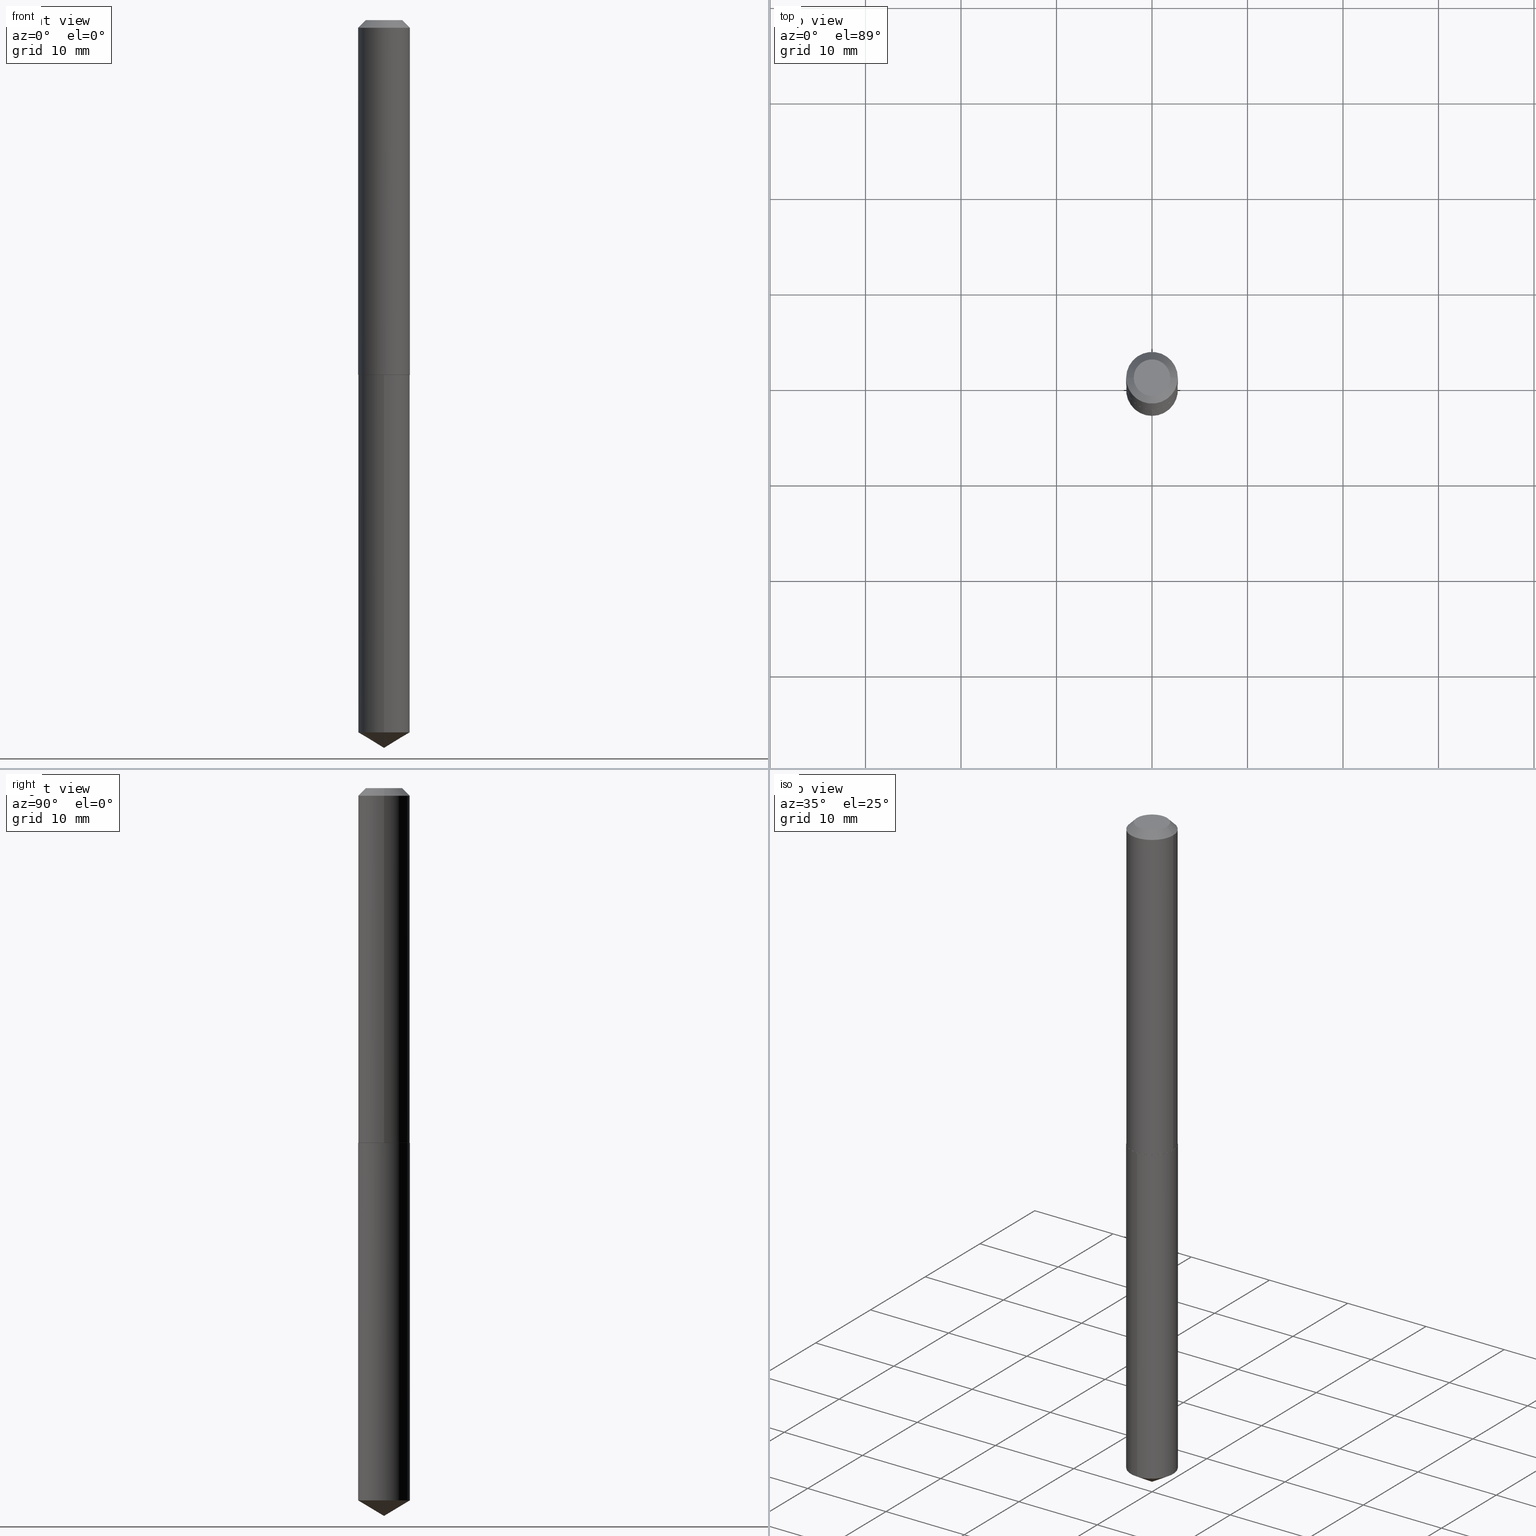
[diagram: canonical four-view strip — front | top / right | iso, engineering-drawing reading convention]
A machine part, canonical four-view strip (front | top / right | iso — engineering-drawing reading convention). The complete STEP part file that produces these views, byte-faithful:
ISO-10303-21;
HEADER;
FILE_DESCRIPTION (( 'STEP AP203' ),
    '1' );
FILE_NAME ('51003.STEP',
    '2024-04-22T18:11:49',
    ( '' ),
    ( '' ),
    'SwSTEP 2.0',
    'SolidWorks 2023',
    '' );
FILE_SCHEMA (( 'CONFIG_CONTROL_DESIGN' ));
ENDSEC;

DATA;
#1 = CIRCLE ( 'NONE', #269, 0.1065000000000001779 ) ;
#2 = DIRECTION ( 'NONE',  ( -2.441767001978232702E-29, 3.496782533161042889E-15, 1.000000000000000000 ) ) ;
#3 = VECTOR ( 'NONE', #383, 39.37007874015748143 ) ;
#4 = DIRECTION ( 'NONE',  ( -1.000000000000000000, 6.982962677686267499E-15, 0.000000000000000000 ) ) ;
#5 = DIRECTION ( 'NONE',  ( -2.445468806185136877E-29, 3.491481338843145188E-15, 1.000000000000000000 ) ) ;
#6 = ADVANCED_FACE ( 'NONE', ( #360 ), #79, .T. ) ;
#7 = CONICAL_SURFACE ( 'NONE', #226, 65.52281426576870160, 1.029744258676656310 ) ;
#8 = COORDINATED_UNIVERSAL_TIME_OFFSET ( 5, 0, .BEHIND. ) ;
#9 = ADVANCED_FACE ( 'NONE', ( #110 ), #361, .T. ) ;
#10 = PERSON_AND_ORGANIZATION_ROLE ( 'classification_officer' ) ;
#11 = APPROVAL_PERSON_ORGANIZATION ( #35, #353, #130 ) ;
#12 = DATE_AND_TIME ( #71, #62 ) ;
#13 = AXIS2_PLACEMENT_3D ( 'NONE', #278, #285, #47 ) ;
#14 = CARTESIAN_POINT ( 'NONE',  ( -7.436855251735515470E-16, -0.1065000000000051045, -1.462999999999999856 ) ) ;
#15 = VERTEX_POINT ( 'NONE', #176 ) ;
#16 = EDGE_CURVE ( 'NONE', #204, #22, #23, .T. ) ;
#17 = DIRECTION ( 'NONE',  ( -5.985567269335949957E-15, -0.8571673007021114454, 0.5150380749100555988 ) ) ;
#18 = FACE_OUTER_BOUND ( 'NONE', #306, .T. ) ;
#19 = EDGE_CURVE ( 'NONE', #15, #179, #357, .T. ) ;
#20 = EDGE_LOOP ( 'NONE', ( #73, #192 ) ) ;
#21 = EDGE_CURVE ( 'NONE', #22, #44, #49, .T. ) ;
#22 = VERTEX_POINT ( 'NONE', #386 ) ;
#23 = LINE ( 'NONE', #148, #217 ) ;
#24 = PRODUCT ( '51003', '51003', '', ( #316 ) ) ;
#25 =( NAMED_UNIT ( * ) SI_UNIT ( $, .STERADIAN. ) SOLID_ANGLE_UNIT ( ) );
#26 = APPROVAL_PERSON_ORGANIZATION ( #302, #337, #153 ) ;
#27 = ORIENTED_EDGE ( 'NONE', *, *, #253, .T. ) ;
#28 = AXIS2_PLACEMENT_3D ( 'NONE', #90, #116, #149 ) ;
#29 = DIRECTION ( 'NONE',  ( 1.000000000000000000, -6.982962677686261977E-15, 0.000000000000000000 ) ) ;
#30 = CONICAL_SURFACE ( 'NONE', #245, 0.1065000000000001779, 0.7853981633974141952 ) ;
#31 = EDGE_LOOP ( 'NONE', ( #257, #326, #259, #214 ) ) ;
#32 = CARTESIAN_POINT ( 'NONE',  ( -0.1065000000000001779, -4.349563444473592911E-15, -1.462500000000000355 ) ) ;
#33 = PERSON_AND_ORGANIZATION_ROLE ( 'design_supplier' ) ;
#34 = CC_DESIGN_DATE_AND_TIME_ASSIGNMENT ( #368, #272, ( #181 ) ) ;
#35 = PERSON_AND_ORGANIZATION ( #324, #376 ) ;
#36 = CARTESIAN_POINT ( 'NONE',  ( 7.567280135845785648E-16, 0.1064999999999948904, -1.463000000000000522 ) ) ;
#37 = ADVANCED_FACE ( 'NONE', ( #202 ), #185, .T. ) ;
#38 = AXIS2_PLACEMENT_3D ( 'NONE', #170, #256, #235 ) ;
#39 = CIRCLE ( 'NONE', #81, 0.1064999999999999974 ) ;
#40 = COORDINATED_UNIVERSAL_TIME_OFFSET ( 5, 0, .BEHIND. ) ;
#41 = DIRECTION ( 'NONE',  ( -6.982962677686265133E-15, -1.000000000000000000, 2.565115487008698002E-15 ) ) ;
#42 = APPROVAL_STATUS ( 'not_yet_approved' ) ;
#43 = CLOSED_SHELL ( 'NONE', ( #37, #280, #6, #172, #318, #9, #267, #241 ) ) ;
#44 = VERTEX_POINT ( 'NONE', #225 ) ;
#45 = CARTESIAN_POINT ( 'NONE',  ( 7.325301005934698666E-29, -1.049034759948312748E-14, -3.000000000000000444 ) ) ;
#46 = ORIENTED_EDGE ( 'NONE', *, *, #56, .T. ) ;
#47 = DIRECTION ( 'NONE',  ( 1.000000000000000000, -6.982962677686265922E-15, 4.876211453340348118E-29 ) ) ;
#48 = VECTOR ( 'NONE', #140, 39.37007874015748143 ) ;
#49 = CIRCLE ( 'NONE', #38, 0.1064999999999999974 ) ;
#50 = LINE ( 'NONE', #251, #385 ) ;
#51 = DIRECTION ( 'NONE',  ( 0.000000000000000000, 0.000000000000000000, 1.000000000000000000 ) ) ;
#52 = DIRECTION ( 'NONE',  ( 2.445468806185136597E-29, -3.491481338843145583E-15, -1.000000000000000000 ) ) ;
#53 = DIRECTION ( 'NONE',  ( 1.000000000000000000, -6.982962677686261977E-15, 0.000000000000000000 ) ) ;
#54 = DIRECTION ( 'NONE',  ( -0.7071067811865453523, 2.468850131082234184E-15, -0.7071067811865496822 ) ) ;
#55 =( LENGTH_UNIT ( ) NAMED_UNIT ( * ) SI_UNIT ( $, .METRE. ) );
#56 = EDGE_CURVE ( 'NONE', #15, #84, #314, .T. ) ;
#57 = AXIS2_PLACEMENT_3D ( 'NONE', #373, #369, #41 ) ;
#58 = CARTESIAN_POINT ( 'NONE',  ( 7.642090019328599159E-31, -1.091087918388489774E-16, -0.03125000000000019429 ) ) ;
#59 = CARTESIAN_POINT ( 'NONE',  ( 7.642090019328599159E-31, -1.091087918388489774E-16, -0.03125000000000019429 ) ) ;
#60 = ORIENTED_EDGE ( 'NONE', *, *, #273, .F. ) ;
#61 = CARTESIAN_POINT ( 'NONE',  ( 3.577720863448855523E-29, -5.108037198727522968E-15, -1.463000000000000300 ) ) ;
#62 = LOCAL_TIME ( 14, 11, 49.00000000000000000, #300 ) ;
#63 = ORIENTED_EDGE ( 'NONE', *, *, #168, .T. ) ;
#64 = CARTESIAN_POINT ( 'NONE',  ( 7.174464031646285139E-29, -1.025882704748443620E-14, -2.936008344073565368 ) ) ;
#65 = PERSON_AND_ORGANIZATION ( #324, #376 ) ;
#66 = AXIS2_PLACEMENT_3D ( 'NONE', #128, #244, #99 ) ;
#67 = ADVANCED_FACE ( 'NONE', ( #113 ), #205, .T. ) ;
#68 = PERSON_AND_ORGANIZATION ( #324, #376 ) ;
#69 = APPROVAL_DATE_TIME ( #156, #224 ) ;
#70 =( GEOMETRIC_REPRESENTATION_CONTEXT ( 3 ) GLOBAL_UNCERTAINTY_ASSIGNED_CONTEXT ( ( #304 ) ) GLOBAL_UNIT_ASSIGNED_CONTEXT ( ( #174, #355, #25 ) ) REPRESENTATION_CONTEXT ( 'NONE', 'WORKASPACE' ) );
#71 = CALENDAR_DATE ( 2024, 22, 4 ) ;
#72 = ADVANCED_FACE ( 'NONE', ( #83 ), #7, .T. ) ;
#73 = ORIENTED_EDGE ( 'NONE', *, *, #293, .T. ) ;
#74 = DIRECTION ( 'NONE',  ( 1.000000000000000000, -6.982962677686261977E-15, 0.000000000000000000 ) ) ;
#75 = EDGE_CURVE ( 'NONE', #345, #22, #320, .T. ) ;
#76 = ORIENTED_EDGE ( 'NONE', *, *, #155, .F. ) ;
#77 = LOCAL_TIME ( 14, 11, 49.00000000000000000, #96 ) ;
#78 = DIRECTION ( 'NONE',  ( 1.000000000000000000, -6.982962677686266711E-15, 0.000000000000000000 ) ) ;
#79 = CONICAL_SURFACE ( 'NONE', #28, 0.1065000000000001779, 0.7853981633974141952 ) ;
#80 = ORIENTED_EDGE ( 'NONE', *, *, #75, .T. ) ;
#81 = AXIS2_PLACEMENT_3D ( 'NONE', #191, #162, #137 ) ;
#82 = DIRECTION ( 'NONE',  ( 1.000000000000000000, 0.000000000000000000, 0.000000000000000000 ) ) ;
#83 = FACE_OUTER_BOUND ( 'NONE', #313, .T. ) ;
#84 = VERTEX_POINT ( 'NONE', #242 ) ;
#85 = DIRECTION ( 'NONE',  ( -2.441767001978232421E-29, 3.496782533161042889E-15, 1.000000000000000000 ) ) ;
#86 = VERTEX_POINT ( 'NONE', #339 ) ;
#87 = CARTESIAN_POINT ( 'NONE',  ( 3.577720863448855523E-29, -5.108037198727522968E-15, -1.463000000000000300 ) ) ;
#88 = AXIS2_PLACEMENT_3D ( 'NONE', #182, #173, #297 ) ;
#89 = CONICAL_SURFACE ( 'NONE', #186, 65.52281426576870160, 1.029744258676656310 ) ;
#90 = CARTESIAN_POINT ( 'NONE',  ( 3.576498129045762721E-29, -5.106291458058101465E-15, -1.462500000000000355 ) ) ;
#91 = FACE_OUTER_BOUND ( 'NONE', #343, .T. ) ;
#92 = CARTESIAN_POINT ( 'NONE',  ( 7.174464031646285139E-29, -1.025882704748443620E-14, -2.936008344073565368 ) ) ;
#93 = DIRECTION ( 'NONE',  ( -2.445468806185136597E-29, 3.491481338843145583E-15, 1.000000000000000000 ) ) ;
#94 = SECURITY_CLASSIFICATION_LEVEL ( 'unclassified' ) ;
#95 = APPROVAL_DATE_TIME ( #270, #337 ) ;
#96 = COORDINATED_UNIVERSAL_TIME_OFFSET ( 5, 0, .BEHIND. ) ;
#97 = PERSON_AND_ORGANIZATION ( #324, #376 ) ;
#98 = CIRCLE ( 'NONE', #284, 0.1064999999999999974 ) ;
#99 = DIRECTION ( 'NONE',  ( 1.000000000000000000, -6.982962677686266711E-15, 0.000000000000000000 ) ) ;
#100 = PERSON_AND_ORGANIZATION_ROLE ( 'creator' ) ;
#101 = LOCAL_TIME ( 14, 11, 49.00000000000000000, #8 ) ;
#102 = VERTEX_POINT ( 'NONE', #239 ) ;
#103 = CARTESIAN_POINT ( 'NONE',  ( 0.1060000000000000386, -5.848231242562268092E-15, -1.463000000000000522 ) ) ;
#104 = ORIENTED_EDGE ( 'NONE', *, *, #155, .T. ) ;
#105 = ADVANCED_FACE ( 'NONE', ( #335 ), #303, .T. ) ;
#106 = LINE ( 'NONE', #311, #372 ) ;
#107 = VERTEX_POINT ( 'NONE', #36 ) ;
#108 = CARTESIAN_POINT ( 'NONE',  ( 5.989671091818683705E-48, -8.551662891793989687E-34, -2.449293598294718806E-19 ) ) ;
#109 = DIRECTION ( 'NONE',  ( -6.982962677686265922E-15, -1.000000000000000000, 3.468864327941580015E-15 ) ) ;
#110 = FACE_OUTER_BOUND ( 'NONE', #231, .T. ) ;
#111 = CARTESIAN_POINT ( 'NONE',  ( 0.1064999999999999974, -8.397518286015170054E-16, -0.03125000000000019429 ) ) ;
#112 = AXIS2_PLACEMENT_3D ( 'NONE', #59, #296, #4 ) ;
#113 = FACE_OUTER_BOUND ( 'NONE', #327, .T. ) ;
#114 = FACE_OUTER_BOUND ( 'NONE', #292, .T. ) ;
#115 = CC_DESIGN_DATE_AND_TIME_ASSIGNMENT ( #126, #240, ( #145 ) ) ;
#116 = DIRECTION ( 'NONE',  ( -2.445468806185136597E-29, 3.491481338843145583E-15, 1.000000000000000000 ) ) ;
#117 = DIRECTION ( 'NONE',  ( -6.982962677686265133E-15, -1.000000000000000000, 2.565115487008698002E-15 ) ) ;
#118 = ORIENTED_EDGE ( 'NONE', *, *, #19, .F. ) ;
#119 = AXIS2_PLACEMENT_3D ( 'NONE', #213, #377, #78 ) ;
#120 = DIRECTION ( 'NONE',  ( -6.982962677686265133E-15, -1.000000000000000000, 5.130230974017396004E-15 ) ) ;
#121 = CARTESIAN_POINT ( 'NONE',  ( 0.000000000000000000, 0.000000000000000000, 0.000000000000000000 ) ) ;
#122 = EDGE_CURVE ( 'NONE', #102, #218, #216, .T. ) ;
#123 = PLANE ( 'NONE',  #248 ) ;
#124 = DIRECTION ( 'NONE',  ( -2.445468806185136877E-29, 3.491481338843145188E-15, 1.000000000000000000 ) ) ;
#125 = VECTOR ( 'NONE', #201, 39.37007874015748854 ) ;
#126 = DATE_AND_TIME ( #305, #288 ) ;
#127 = EDGE_CURVE ( 'NONE', #218, #102, #154, .T. ) ;
#128 = CARTESIAN_POINT ( 'NONE',  ( 3.577720863448856083E-29, -5.108037198727523757E-15, -1.463000000000000522 ) ) ;
#129 = APPLICATION_CONTEXT ( 'configuration controlled 3d designs of mechanical parts and assemblies' ) ;
#130 = APPROVAL_ROLE ( '' ) ;
#131 = APPROVAL_DATE_TIME ( #12, #353 ) ;
#132 = CIRCLE ( 'NONE', #351, 0.1064999999999999974 ) ;
#133 = CC_DESIGN_PERSON_AND_ORGANIZATION_ASSIGNMENT ( #266, #10, ( #181 ) ) ;
#134 = FACE_OUTER_BOUND ( 'NONE', #252, .T. ) ;
#135 = ADVANCED_FACE ( 'NONE', ( #341 ), #89, .T. ) ;
#136 = ORIENTED_EDGE ( 'NONE', *, *, #16, .T. ) ;
#137 = DIRECTION ( 'NONE',  ( -6.982962677686265133E-15, -1.000000000000000000, 2.565115487008698002E-15 ) ) ;
#138 = VERTEX_POINT ( 'NONE', #307 ) ;
#139 = CIRCLE ( 'NONE', #13, 0.07524999999999999745 ) ;
#140 = DIRECTION ( 'NONE',  ( 0.7071067811865453523, -7.319954787623248157E-15, -0.7071067811865496822 ) ) ;
#141 = ORIENTED_EDGE ( 'NONE', *, *, #390, .T. ) ;
#142 = CARTESIAN_POINT ( 'NONE',  ( 9.448187553533588505E-30, -8.878502873001873389E-15, -1.463000000000000300 ) ) ;
#143 = CARTESIAN_POINT ( 'NONE',  ( 0.000000000000000000, 0.000000000000000000, 0.000000000000000000 ) ) ;
#144 = DIRECTION ( 'NONE',  ( -2.445468806185136597E-29, 3.491481338843145583E-15, 1.000000000000000000 ) ) ;
#145 = PRODUCT_DEFINITION ( 'UNKNOWN', '', #243, #370 ) ;
#146 = ORIENTED_EDGE ( 'NONE', *, *, #19, .T. ) ;
#147 = CARTESIAN_POINT ( 'NONE',  ( 7.567280135845422772E-16, 0.1064999999999948904, -1.463000000000000522 ) ) ;
#148 = CARTESIAN_POINT ( 'NONE',  ( -0.1064999999999999974, 6.345767333347384381E-16, -0.03125000000000019429 ) ) ;
#149 = DIRECTION ( 'NONE',  ( 1.000000000000000000, -6.982962677686261977E-15, 0.000000000000000000 ) ) ;
#150 = DIRECTION ( 'NONE',  ( 2.441767001978232421E-29, -3.496782533161042889E-15, -1.000000000000000000 ) ) ;
#151 = CIRCLE ( 'NONE', #301, 0.1064999999999999974 ) ;
#152 = CARTESIAN_POINT ( 'NONE',  ( 3.576498129045762721E-29, -5.106291458058101465E-15, -1.462500000000000355 ) ) ;
#153 = APPROVAL_ROLE ( '' ) ;
#154 = CIRCLE ( 'NONE', #119, 0.1060000000000000386 ) ;
#155 = EDGE_CURVE ( 'NONE', #138, #345, #1, .T. ) ;
#156 = DATE_AND_TIME ( #331, #101 ) ;
#157 = PERSON_AND_ORGANIZATION_ROLE ( 'creator' ) ;
#158 = CIRCLE ( 'NONE', #342, 0.07524999999999999745 ) ;
#159 = ORIENTED_EDGE ( 'NONE', *, *, #390, .F. ) ;
#160 = DIRECTION ( 'NONE',  ( -2.441767001978232702E-29, 3.496782533161042889E-15, 1.000000000000000000 ) ) ;
#161 = ORIENTED_EDGE ( 'NONE', *, *, #21, .T. ) ;
#162 = DIRECTION ( 'NONE',  ( -2.441767001978232702E-29, 3.496782533161042889E-15, 1.000000000000000000 ) ) ;
#163 = ORIENTED_EDGE ( 'NONE', *, *, #308, .F. ) ;
#164 = DIRECTION ( 'NONE',  ( -2.445468806185136597E-29, 3.491481338843145583E-15, 1.000000000000000000 ) ) ;
#165 = ORIENTED_EDGE ( 'NONE', *, *, #237, .T. ) ;
#166 = AXIS2_PLACEMENT_3D ( 'NONE', #121, #183, #358 ) ;
#167 = ORIENTED_EDGE ( 'NONE', *, *, #384, .F. ) ;
#168 = EDGE_CURVE ( 'NONE', #86, #84, #106, .T. ) ;
#169 = CARTESIAN_POINT ( 'NONE',  ( -8.880184238751188333E-28, 1.271860117155615693E-13, 36.37007874015748143 ) ) ;
#170 = CARTESIAN_POINT ( 'NONE',  ( 7.642090019328599159E-31, -1.091087918388489774E-16, -0.03125000000000019429 ) ) ;
#171 = DIRECTION ( 'NONE',  ( -2.441767001978232702E-29, 3.496782533161042889E-15, 1.000000000000000000 ) ) ;
#172 = ADVANCED_FACE ( 'NONE', ( #134 ), #315, .F. ) ;
#173 = DIRECTION ( 'NONE',  ( -2.441767001978232702E-29, 3.496782533161042889E-15, 1.000000000000000000 ) ) ;
#174 =( CONVERSION_BASED_UNIT ( 'INCH', #364 ) LENGTH_UNIT ( ) NAMED_UNIT ( #356 ) );
#175 = EDGE_CURVE ( 'NONE', #86, #15, #219, .T. ) ;
#176 = CARTESIAN_POINT ( 'NONE',  ( -7.436855251735155552E-16, -0.1065000000000102531, -2.936008344073564924 ) ) ;
#177 = DIRECTION ( 'NONE',  ( -2.441767001978232702E-29, 3.496782533161042889E-15, 1.000000000000000000 ) ) ;
#178 = CC_DESIGN_PERSON_AND_ORGANIZATION_ASSIGNMENT ( #65, #157, ( #243 ) ) ;
#179 = VERTEX_POINT ( 'NONE', #14 ) ;
#180 = CYLINDRICAL_SURFACE ( 'NONE', #166, 0.1065000000000000807 ) ;
#181 = SECURITY_CLASSIFICATION ( '', '', #94 ) ;
#182 = CARTESIAN_POINT ( 'NONE',  ( 3.577720863448855523E-29, -5.108037198727522968E-15, -1.463000000000000300 ) ) ;
#183 = DIRECTION ( 'NONE',  ( -2.445468806185136597E-29, 3.491481338843145583E-15, 1.000000000000000000 ) ) ;
#184 = APPROVAL_STATUS ( 'not_yet_approved' ) ;
#185 = CONICAL_SURFACE ( 'NONE', #264, 0.1064999999999999974, 0.7853981633974452814 ) ;
#186 = AXIS2_PLACEMENT_3D ( 'NONE', #169, #160, #109 ) ;
#187 = SHAPE_DEFINITION_REPRESENTATION ( #363, #210 ) ;
#188 = EDGE_CURVE ( 'NONE', #222, #44, #348, .T. ) ;
#189 = ORIENTED_EDGE ( 'NONE', *, *, #366, .F. ) ;
#190 = ORIENTED_EDGE ( 'NONE', *, *, #325, .T. ) ;
#191 = CARTESIAN_POINT ( 'NONE',  ( 3.577720863448855523E-29, -5.108037198727522968E-15, -1.463000000000000300 ) ) ;
#192 = ORIENTED_EDGE ( 'NONE', *, *, #209, .T. ) ;
#193 = CC_DESIGN_APPROVAL ( #224, ( #145 ) ) ;
#194 = ORIENTED_EDGE ( 'NONE', *, *, #366, .T. ) ;
#195 = DIRECTION ( 'NONE',  ( -1.000000000000000000, 6.982962677686265922E-15, -4.876176775795935793E-29 ) ) ;
#196 = EDGE_CURVE ( 'NONE', #218, #138, #50, .T. ) ;
#197 = ORIENTED_EDGE ( 'NONE', *, *, #253, .F. ) ;
#198 = DIRECTION ( 'NONE',  ( -2.441767001978232702E-29, 3.496782533161042889E-15, 1.000000000000000000 ) ) ;
#199 = CARTESIAN_POINT ( 'NONE',  ( -0.1065000000000001779, -4.349563444473592911E-15, -1.462500000000000355 ) ) ;
#200 = ORIENTED_EDGE ( 'NONE', *, *, #273, .T. ) ;
#201 = DIRECTION ( 'NONE',  ( -0.7071067811865232589, 7.493145998870265808E-15, 0.7071067811865715536 ) ) ;
#202 = FACE_OUTER_BOUND ( 'NONE', #31, .T. ) ;
#203 = VECTOR ( 'NONE', #17, 39.37007874015748143 ) ;
#204 = VERTEX_POINT ( 'NONE', #227 ) ;
#205 = CYLINDRICAL_SURFACE ( 'NONE', #88, 0.1064999999999999974 ) ;
#206 = DIRECTION ( 'NONE',  ( 1.000000000000000000, -6.982962677686267499E-15, 0.000000000000000000 ) ) ;
#207 = PRODUCT_RELATED_PRODUCT_CATEGORY ( 'detail', '', ( #24 ) ) ;
#208 = APPROVAL_STATUS ( 'not_yet_approved' ) ;
#209 = EDGE_CURVE ( 'NONE', #222, #204, #139, .T. ) ;
#210 = ADVANCED_BREP_SHAPE_REPRESENTATION ( '51003', ( #228, #367, #346 ), #70 ) ;
#211 = AXIS2_PLACEMENT_3D ( 'NONE', #108, #221, #195 ) ;
#212 = AXIS2_PLACEMENT_3D ( 'NONE', #143, #323, #261 ) ;
#213 = CARTESIAN_POINT ( 'NONE',  ( 3.577720863448856083E-29, -5.108037198727523757E-15, -1.463000000000000522 ) ) ;
#214 = ORIENTED_EDGE ( 'NONE', *, *, #16, .F. ) ;
#215 = ORIENTED_EDGE ( 'NONE', *, *, #196, .T. ) ;
#216 = CIRCLE ( 'NONE', #66, 0.1060000000000000386 ) ;
#217 = VECTOR ( 'NONE', #54, 39.37007874015748143 ) ;
#218 = VERTEX_POINT ( 'NONE', #103 ) ;
#219 = LINE ( 'NONE', #45, #203 ) ;
#220 = EDGE_LOOP ( 'NONE', ( #233, #63, #277 ) ) ;
#221 = DIRECTION ( 'NONE',  ( 2.438088387897960049E-29, -3.491481338843145188E-15, -1.000000000000000000 ) ) ;
#222 = VERTEX_POINT ( 'NONE', #310 ) ;
#223 = CARTESIAN_POINT ( 'NONE',  ( 3.576498129045762721E-29, -5.106291458058101465E-15, -1.462500000000000355 ) ) ;
#224 = APPROVAL ( #208, 'UNSPECIFIED' ) ;
#225 = CARTESIAN_POINT ( 'NONE',  ( 0.1064999999999999974, -8.527943170124363436E-16, -0.03125000000000019429 ) ) ;
#226 = AXIS2_PLACEMENT_3D ( 'NONE', #229, #198, #317 ) ;
#227 = CARTESIAN_POINT ( 'NONE',  ( -0.07524999999999999745, 5.800223374153149725E-16, -4.898587196628091026E-19 ) ) ;
#228 = MANIFOLD_SOLID_BREP ( 'Body-Move/Copy2[1]', #260 ) ;
#229 = CARTESIAN_POINT ( 'NONE',  ( -8.880184238751188333E-28, 1.271860117155615693E-13, 36.37007874015748143 ) ) ;
#230 = LINE ( 'NONE', #199, #125 ) ;
#231 = EDGE_LOOP ( 'NONE', ( #381, #200, #340, #352 ) ) ;
#232 = CC_DESIGN_PERSON_AND_ORGANIZATION_ASSIGNMENT ( #97, #100, ( #145 ) ) ;
#233 = ORIENTED_EDGE ( 'NONE', *, *, #175, .F. ) ;
#234 = LINE ( 'NONE', #147, #359 ) ;
#235 = DIRECTION ( 'NONE',  ( 1.000000000000000000, -6.982962677686267499E-15, 0.000000000000000000 ) ) ;
#236 = DIRECTION ( 'NONE',  ( 1.000000000000000000, -6.982962677686265922E-15, 4.876211453340348118E-29 ) ) ;
#237 = EDGE_CURVE ( 'NONE', #107, #179, #39, .T. ) ;
#238 = CARTESIAN_POINT ( 'NONE',  ( 7.642090019328599159E-31, -1.091087918388489774E-16, -0.03125000000000019429 ) ) ;
#239 = CARTESIAN_POINT ( 'NONE',  ( -0.1060000000000000386, -4.352212671647704901E-15, -1.463000000000000522 ) ) ;
#240 = DATE_TIME_ROLE ( 'creation_date' ) ;
#241 = ADVANCED_FACE ( 'NONE', ( #379 ), #380, .F. ) ;
#242 = CARTESIAN_POINT ( 'NONE',  ( 7.567280135845780717E-16, 0.1064999999999897140, -2.936008344073565812 ) ) ;
#243 = PRODUCT_DEFINITION_FORMATION_WITH_SPECIFIED_SOURCE ( 'ANY', '', #24, .NOT_KNOWN. ) ;
#244 = DIRECTION ( 'NONE',  ( -2.445468806185136597E-29, 3.491481338843145583E-15, 1.000000000000000000 ) ) ;
#245 = AXIS2_PLACEMENT_3D ( 'NONE', #328, #144, #53 ) ;
#246 = DIRECTION ( 'NONE',  ( 0.7071067811865232589, -2.468850131082003836E-15, 0.7071067811865715536 ) ) ;
#247 = EDGE_LOOP ( 'NONE', ( #104, #80, #163, #167 ) ) ;
#248 = AXIS2_PLACEMENT_3D ( 'NONE', #61, #150, #262 ) ;
#249 = ORIENTED_EDGE ( 'NONE', *, *, #122, .F. ) ;
#250 = ADVANCED_FACE ( 'NONE', ( #18 ), #123, .F. ) ;
#251 = CARTESIAN_POINT ( 'NONE',  ( 0.1065000000000001779, -5.849976983231689595E-15, -1.462500000000000355 ) ) ;
#252 = EDGE_LOOP ( 'NONE', ( #347, #249 ) ) ;
#253 = EDGE_CURVE ( 'NONE', #102, #345, #230, .T. ) ;
#254 = ORIENTED_EDGE ( 'NONE', *, *, #293, .F. ) ;
#255 = PERSON_AND_ORGANIZATION ( #324, #376 ) ;
#256 = DIRECTION ( 'NONE',  ( -2.445468806185136597E-29, 3.491481338843145583E-15, 1.000000000000000000 ) ) ;
#257 = ORIENTED_EDGE ( 'NONE', *, *, #209, .F. ) ;
#258 = APPROVAL_PERSON_ORGANIZATION ( #334, #224, #371 ) ;
#259 = ORIENTED_EDGE ( 'NONE', *, *, #308, .T. ) ;
#260 = CLOSED_SHELL ( 'NONE', ( #105, #135, #72, #67, #250 ) ) ;
#261 = DIRECTION ( 'NONE',  ( 1.000000000000000000, -6.982962677686267499E-15, 4.876176775795935232E-29 ) ) ;
#262 = DIRECTION ( 'NONE',  ( 6.982962677686265922E-15, 1.000000000000000000, -3.496782533161042889E-15 ) ) ;
#263 = CONICAL_SURFACE ( 'NONE', #112, 0.1064999999999999974, 0.7853981633974452814 ) ;
#264 = AXIS2_PLACEMENT_3D ( 'NONE', #58, #52, #389 ) ;
#265 = LINE ( 'NONE', #319, #299 ) ;
#266 = PERSON_AND_ORGANIZATION ( #324, #376 ) ;
#267 = ADVANCED_FACE ( 'NONE', ( #114 ), #263, .T. ) ;
#268 = COORDINATED_UNIVERSAL_TIME_OFFSET ( 5, 0, .BEHIND. ) ;
#269 = AXIS2_PLACEMENT_3D ( 'NONE', #223, #164, #74 ) ;
#270 = DATE_AND_TIME ( #365, #77 ) ;
#271 = PERSON_AND_ORGANIZATION_ROLE ( 'design_owner' ) ;
#272 = DATE_TIME_ROLE ( 'classification_date' ) ;
#273 = EDGE_CURVE ( 'NONE', #345, #138, #312, .T. ) ;
#274 = AXIS2_PLACEMENT_3D ( 'NONE', #142, #276, #344 ) ;
#275 = ORIENTED_EDGE ( 'NONE', *, *, #196, .F. ) ;
#276 = DIRECTION ( 'NONE',  ( -2.438088387897960049E-29, 3.491481338843145188E-15, 1.000000000000000000 ) ) ;
#277 = ORIENTED_EDGE ( 'NONE', *, *, #56, .F. ) ;
#278 = CARTESIAN_POINT ( 'NONE',  ( 1.197934218363736741E-47, -1.710332578358797937E-33, -4.898587196589437612E-19 ) ) ;
#279 = CC_DESIGN_SECURITY_CLASSIFICATION ( #181, ( #243 ) ) ;
#280 = ADVANCED_FACE ( 'NONE', ( #388 ), #180, .T. ) ;
#281 = EDGE_LOOP ( 'NONE', ( #387, #27, #76, #275 ) ) ;
#282 = DIRECTION ( 'NONE',  ( 6.090539988449787113E-15, 0.8571673007021151092, 0.5150380749100497146 ) ) ;
#283 = APPLICATION_CONTEXT ( 'configuration controlled 3d designs of mechanical parts and assemblies' ) ;
#284 = AXIS2_PLACEMENT_3D ( 'NONE', #238, #362, #206 ) ;
#285 = DIRECTION ( 'NONE',  ( -2.445468806185136597E-29, 3.491481338843145583E-15, 1.000000000000000000 ) ) ;
#286 = ORIENTED_EDGE ( 'NONE', *, *, #122, .T. ) ;
#287 = APPLICATION_PROTOCOL_DEFINITION ( 'international standard', 'config_control_design', 1994, #129 ) ;
#288 = LOCAL_TIME ( 14, 11, 49.00000000000000000, #40 ) ;
#289 = CARTESIAN_POINT ( 'NONE',  ( -7.436855251735515470E-16, -0.1065000000000051045, -1.462999999999999856 ) ) ;
#290 = DIRECTION ( 'NONE',  ( -2.445468806185136597E-29, 3.491481338843145583E-15, 1.000000000000000000 ) ) ;
#291 = CARTESIAN_POINT ( 'NONE',  ( -0.1065000000000000807, 7.567280135845072715E-16, -5.238665871121478096E-30 ) ) ;
#292 = EDGE_LOOP ( 'NONE', ( #338, #254, #136, #161 ) ) ;
#293 = EDGE_CURVE ( 'NONE', #204, #222, #158, .T. ) ;
#294 = CC_DESIGN_APPROVAL ( #337, ( #243 ) ) ;
#295 = ORIENTED_EDGE ( 'NONE', *, *, #325, .F. ) ;
#296 = DIRECTION ( 'NONE',  ( 2.445468806185136597E-29, -3.491481338843145583E-15, -1.000000000000000000 ) ) ;
#297 = DIRECTION ( 'NONE',  ( -6.982962677686265133E-15, -1.000000000000000000, 2.565115487008698002E-15 ) ) ;
#298 = DIRECTION ( 'NONE',  ( -6.982962677686265133E-15, -1.000000000000000000, 5.130230974017396004E-15 ) ) ;
#299 = VECTOR ( 'NONE', #5, 39.37007874015748143 ) ;
#300 = COORDINATED_UNIVERSAL_TIME_OFFSET ( 5, 0, .BEHIND. ) ;
#301 = AXIS2_PLACEMENT_3D ( 'NONE', #64, #177, #298 ) ;
#302 = PERSON_AND_ORGANIZATION ( #324, #376 ) ;
#303 = CYLINDRICAL_SURFACE ( 'NONE', #57, 0.1064999999999999974 ) ;
#304 = UNCERTAINTY_MEASURE_WITH_UNIT (LENGTH_MEASURE( 1.000000000000000082E-05 ), #174, 'distance_accuracy_value', 'NONE');
#305 = CALENDAR_DATE ( 2024, 22, 4 ) ;
#306 = EDGE_LOOP ( 'NONE', ( #141, #165 ) ) ;
#307 = CARTESIAN_POINT ( 'NONE',  ( 0.1065000000000001779, -5.849976983231689595E-15, -1.462500000000000355 ) ) ;
#308 = EDGE_CURVE ( 'NONE', #44, #22, #98, .T. ) ;
#309 = ORIENTED_EDGE ( 'NONE', *, *, #175, .T. ) ;
#310 = CARTESIAN_POINT ( 'NONE',  ( 0.07524999999999999745, -6.780021514669123730E-16, -4.898587196547362783E-19 ) ) ;
#311 = CARTESIAN_POINT ( 'NONE',  ( 7.336227464330352641E-29, -1.047483630490896181E-14, -3.000000000000000444 ) ) ;
#312 = CIRCLE ( 'NONE', #330, 0.1065000000000001779 ) ;
#313 = EDGE_LOOP ( 'NONE', ( #375, #309, #295 ) ) ;
#314 = CIRCLE ( 'NONE', #350, 0.1064999999999999974 ) ;
#315 = PLANE ( 'NONE',  #274 ) ;
#316 = MECHANICAL_CONTEXT ( 'NONE', #129, 'mechanical' ) ;
#317 = DIRECTION ( 'NONE',  ( -6.982962677686265922E-15, -1.000000000000000000, 3.468864327941580015E-15 ) ) ;
#318 = ADVANCED_FACE ( 'NONE', ( #91 ), #30, .T. ) ;
#319 = CARTESIAN_POINT ( 'NONE',  ( 0.1065000000000000807, -7.436855251735880318E-16, 5.193128266222675235E-30 ) ) ;
#320 = LINE ( 'NONE', #291, #322 ) ;
#321 = CARTESIAN_POINT ( 'NONE',  ( 1.197934218363736741E-47, -1.710332578358797937E-33, -4.898587196589437612E-19 ) ) ;
#322 = VECTOR ( 'NONE', #124, 39.37007874015748143 ) ;
#323 = DIRECTION ( 'NONE',  ( -2.445468806185136597E-29, 3.491481338843145583E-15, 1.000000000000000000 ) ) ;
#324 = PERSON ( 'UNSPECIFIED', 'UNSPECIFIED', 'UNSPECIFIED', ('UNSPECIFIED'), ('UNSPECIFIED'), ('UNSPECIFIED') ) ;
#325 = EDGE_CURVE ( 'NONE', #84, #15, #151, .T. ) ;
#326 = ORIENTED_EDGE ( 'NONE', *, *, #188, .T. ) ;
#327 = EDGE_LOOP ( 'NONE', ( #189, #190, #146, #354 ) ) ;
#328 = CARTESIAN_POINT ( 'NONE',  ( 3.576498129045762721E-29, -5.106291458058101465E-15, -1.462500000000000355 ) ) ;
#329 = APPLICATION_PROTOCOL_DEFINITION ( 'international standard', 'config_control_design', 1994, #283 ) ;
#330 = AXIS2_PLACEMENT_3D ( 'NONE', #152, #93, #29 ) ;
#331 = CALENDAR_DATE ( 2024, 22, 4 ) ;
#332 = CC_DESIGN_APPROVAL ( #353, ( #181 ) ) ;
#333 = CC_DESIGN_PERSON_AND_ORGANIZATION_ASSIGNMENT ( #68, #33, ( #243 ) ) ;
#334 = PERSON_AND_ORGANIZATION ( #324, #376 ) ;
#335 = FACE_OUTER_BOUND ( 'NONE', #378, .T. ) ;
#336 = CALENDAR_DATE ( 2024, 22, 4 ) ;
#337 = APPROVAL ( #42, 'UNSPECIFIED' ) ;
#338 = ORIENTED_EDGE ( 'NONE', *, *, #188, .F. ) ;
#339 = CARTESIAN_POINT ( 'NONE',  ( 7.325301005934698666E-29, -1.049034759948312906E-14, -3.000000000000000444 ) ) ;
#340 = ORIENTED_EDGE ( 'NONE', *, *, #384, .T. ) ;
#341 = FACE_OUTER_BOUND ( 'NONE', #220, .T. ) ;
#342 = AXIS2_PLACEMENT_3D ( 'NONE', #321, #290, #236 ) ;
#343 = EDGE_LOOP ( 'NONE', ( #197, #286, #215, #60 ) ) ;
#344 = DIRECTION ( 'NONE',  ( 1.000000000000000000, -6.982962677686265922E-15, 4.876176775795935793E-29 ) ) ;
#345 = VERTEX_POINT ( 'NONE', #32 ) ;
#346 = AXIS2_PLACEMENT_3D ( 'NONE', #349, #51, #82 ) ;
#347 = ORIENTED_EDGE ( 'NONE', *, *, #127, .F. ) ;
#348 = LINE ( 'NONE', #111, #48 ) ;
#349 = CARTESIAN_POINT ( 'NONE',  ( 0.000000000000000000, 0.000000000000000000, 0.000000000000000000 ) ) ;
#350 = AXIS2_PLACEMENT_3D ( 'NONE', #92, #2, #120 ) ;
#351 = AXIS2_PLACEMENT_3D ( 'NONE', #87, #171, #117 ) ;
#352 = ORIENTED_EDGE ( 'NONE', *, *, #21, .F. ) ;
#353 = APPROVAL ( #184, 'UNSPECIFIED' ) ;
#354 = ORIENTED_EDGE ( 'NONE', *, *, #237, .F. ) ;
#355 =( NAMED_UNIT ( * ) PLANE_ANGLE_UNIT ( ) SI_UNIT ( $, .RADIAN. ) );
#356 = DIMENSIONAL_EXPONENTS ( 1.000000000000000000, 0.000000000000000000, 0.000000000000000000, 0.000000000000000000, 0.000000000000000000, 0.000000000000000000, 0.000000000000000000 ) ;
#357 = LINE ( 'NONE', #289, #3 ) ;
#358 = DIRECTION ( 'NONE',  ( 1.000000000000000000, -6.982962677686267499E-15, 4.876176775795935232E-29 ) ) ;
#359 = VECTOR ( 'NONE', #85, 39.37007874015748143 ) ;
#360 = FACE_OUTER_BOUND ( 'NONE', #281, .T. ) ;
#361 = CYLINDRICAL_SURFACE ( 'NONE', #212, 0.1065000000000000807 ) ;
#362 = DIRECTION ( 'NONE',  ( -2.445468806185136597E-29, 3.491481338843145583E-15, 1.000000000000000000 ) ) ;
#363 = PRODUCT_DEFINITION_SHAPE ( 'NONE', 'NONE',  #145 ) ;
#364 = LENGTH_MEASURE_WITH_UNIT ( LENGTH_MEASURE( 0.02539999999999999897 ), #55 );
#365 = CALENDAR_DATE ( 2024, 22, 4 ) ;
#366 = EDGE_CURVE ( 'NONE', #84, #107, #234, .T. ) ;
#367 = MANIFOLD_SOLID_BREP ( 'Body-Move/Copy2[2]', #43 ) ;
#368 = DATE_AND_TIME ( #336, #382 ) ;
#369 = DIRECTION ( 'NONE',  ( -2.441767001978232702E-29, 3.496782533161042889E-15, 1.000000000000000000 ) ) ;
#370 = DESIGN_CONTEXT ( 'detailed design', #283, 'design' ) ;
#371 = APPROVAL_ROLE ( '' ) ;
#372 = VECTOR ( 'NONE', #282, 39.37007874015748854 ) ;
#373 = CARTESIAN_POINT ( 'NONE',  ( 3.577720863448855523E-29, -5.108037198727522968E-15, -1.463000000000000300 ) ) ;
#374 = CC_DESIGN_PERSON_AND_ORGANIZATION_ASSIGNMENT ( #255, #271, ( #24 ) ) ;
#375 = ORIENTED_EDGE ( 'NONE', *, *, #168, .F. ) ;
#376 = ORGANIZATION ( 'UNSPECIFIED', 'UNSPECIFIED', '' ) ;
#377 = DIRECTION ( 'NONE',  ( -2.445468806185136597E-29, 3.491481338843145583E-15, 1.000000000000000000 ) ) ;
#378 = EDGE_LOOP ( 'NONE', ( #46, #194, #159, #118 ) ) ;
#379 = FACE_OUTER_BOUND ( 'NONE', #20, .T. ) ;
#380 = PLANE ( 'NONE',  #211 ) ;
#381 = ORIENTED_EDGE ( 'NONE', *, *, #75, .F. ) ;
#382 = LOCAL_TIME ( 14, 11, 49.00000000000000000, #268 ) ;
#383 = DIRECTION ( 'NONE',  ( -2.441767001978232421E-29, 3.496782533161042889E-15, 1.000000000000000000 ) ) ;
#384 = EDGE_CURVE ( 'NONE', #138, #44, #265, .T. ) ;
#385 = VECTOR ( 'NONE', #246, 39.37007874015748854 ) ;
#386 = CARTESIAN_POINT ( 'NONE',  ( -0.1064999999999999974, -1.850972111363967124E-15, -0.03125000000000019429 ) ) ;
#387 = ORIENTED_EDGE ( 'NONE', *, *, #127, .T. ) ;
#388 = FACE_OUTER_BOUND ( 'NONE', #247, .T. ) ;
#389 = DIRECTION ( 'NONE',  ( -1.000000000000000000, 6.982962677686267499E-15, 0.000000000000000000 ) ) ;
#390 = EDGE_CURVE ( 'NONE', #179, #107, #132, .T. ) ;
ENDSEC;
END-ISO-10303-21;
